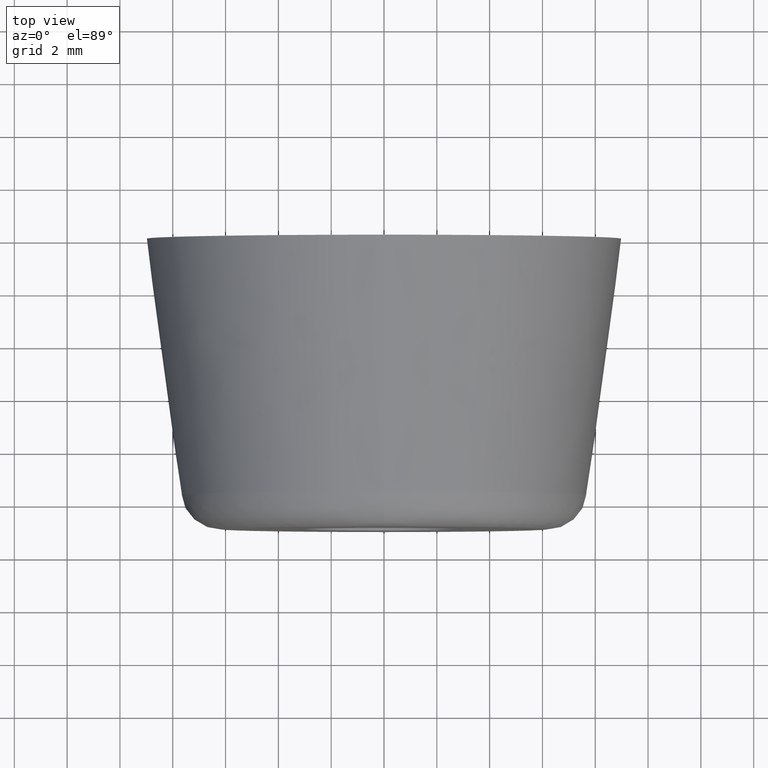
[diagram: clean part render]
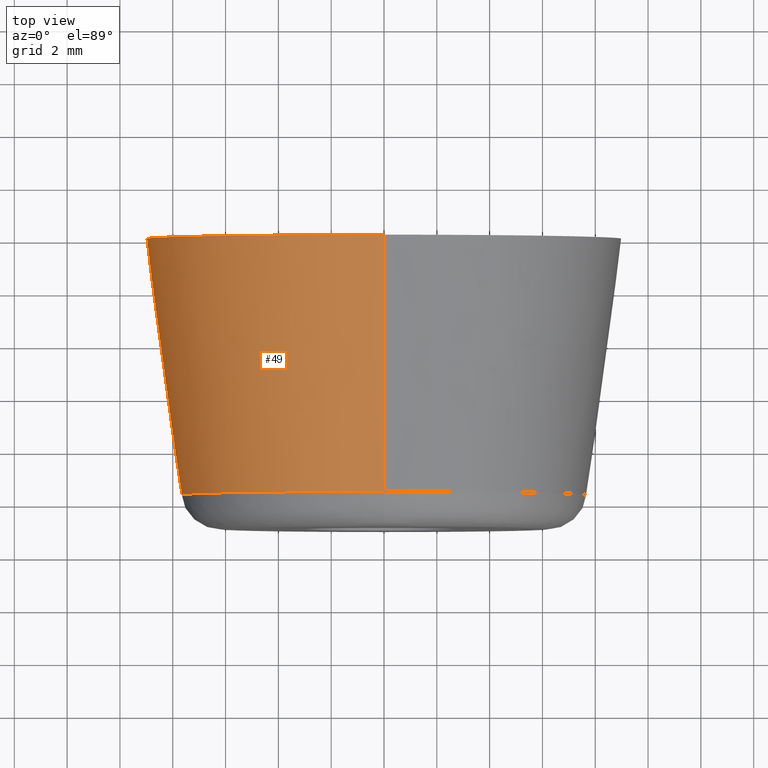
[diagram: same view with one face highlighted and labeled with its STEP entity id]
A machine part, top view. The second image highlights one B-rep face of the part: STEP entity #49.
In plain terms, the highlighted face is a freeform B-spline surface patch.
Its self-contained STEP definition (entity closure, byte-faithful):
#49=ADVANCED_FACE('',(#145),#144,.T.);
#144=( BOUNDED_SURFACE() B_SPLINE_SURFACE( 2,1,((#254,#255),(#256,#257),(#258,#259),(#260,#261),(#262,#263)), .UNSPECIFIED.,.F.,.F.,.F.) B_SPLINE_SURFACE_WITH_KNOTS((3,2,3),(2,2),(0.00000000000E+00,5.00000000000E-01,1.00000000000E+00),(0.00000000000E+00,1.00000000000E+00), .UNSPECIFIED. ) GEOMETRIC_REPRESENTATION_ITEM() RATIONAL_B_SPLINE_SURFACE(((1.00000000000E+00,1.00000000000E+00),(7.07106781187E-01,7.07106781187E-01),(1.00000000000E+00,1.00000000000E+00),(7.07106781187E-01,7.07106781187E-01),(1.00000000000E+00,1.00000000000E+00))) REPRESENTATION_ITEM('') SURFACE() );
#145=FACE_OUTER_BOUND('',#264,.T.);
#254=CARTESIAN_POINT('',(3.36468364638E-14,-9.70266980710E+00,-7.67690866267E+00));
#255=CARTESIAN_POINT('',(3.33227725495E-14,0.00000000000E+00,-9.00000000000E+00));
#256=CARTESIAN_POINT('',(-7.67690866267E+00,-9.70266980710E+00,-7.67690866267E+00));
#257=CARTESIAN_POINT('',(-9.00000000000E+00,0.00000000000E+00,-9.00000000000E+00));
#258=CARTESIAN_POINT('',(-7.67690866267E+00,-9.70266980710E+00,1.41022524316E-15));
#259=CARTESIAN_POINT('',(-9.00000000000E+00,0.00000000000E+00,1.65327317885E-15));
#260=CARTESIAN_POINT('',(-7.67690866267E+00,-9.70266980710E+00,7.67690866267E+00));
#261=CARTESIAN_POINT('',(-9.00000000000E+00,0.00000000000E+00,9.00000000000E+00));
#262=CARTESIAN_POINT('',(3.64672869501E-14,-9.70266980710E+00,7.67690866267E+00));
#263=CARTESIAN_POINT('',(3.66293189072E-14,0.00000000000E+00,9.00000000000E+00));
#264=EDGE_LOOP('',(#312,#313,#314,#315));
#312=ORIENTED_EDGE('',*,*,#328,.T.);
#313=ORIENTED_EDGE('',*,*,#340,.F.);
#314=ORIENTED_EDGE('',*,*,#337,.F.);
#315=ORIENTED_EDGE('',*,*,#341,.T.);
#328=EDGE_CURVE('',#398,#399,#400,.T.);
#337=EDGE_CURVE('',#450,#457,#458,.T.);
#340=EDGE_CURVE('',#457,#399,#476,.T.);
#341=EDGE_CURVE('',#450,#398,#482,.T.);
#398=VERTEX_POINT('',#528);
#399=VERTEX_POINT('',#529);
#400=CIRCLE('',#533,9.00000000000E+00);
#450=VERTEX_POINT('',#556);
#457=VERTEX_POINT('',#560);
#458=CIRCLE('',#564,7.67690866267E+00);
#476=(BOUNDED_CURVE() B_SPLINE_CURVE(1,(#574,#575),.UNSPECIFIED.,.F.,.F.) B_SPLINE_CURVE_WITH_KNOTS((2,2),(0.00000000000E+00,1.00000000000E+00),.UNSPECIFIED.) CURVE() GEOMETRIC_REPRESENTATION_ITEM() RATIONAL_B_SPLINE_CURVE((1.00000000000E+00,1.00000000000E+00)) REPRESENTATION_ITEM('') );
#482=(BOUNDED_CURVE() B_SPLINE_CURVE(1,(#576,#577),.UNSPECIFIED.,.F.,.F.) B_SPLINE_CURVE_WITH_KNOTS((2,2),(0.00000000000E+00,1.00000000000E+00),.UNSPECIFIED.) CURVE() GEOMETRIC_REPRESENTATION_ITEM() RATIONAL_B_SPLINE_CURVE((7.50000000000E-01,7.50000000000E-01)) REPRESENTATION_ITEM('') );
#528=CARTESIAN_POINT('',(3.61192557345E-14,0.00000000000E+00,9.00000000000E+00));
#529=CARTESIAN_POINT('',(3.55271367880E-14,0.00000000000E+00,-9.00000000000E+00));
#530=CARTESIAN_POINT('',(3.55271367880E-14,0.00000000000E+00,0.00000000000E+00));
#531=DIRECTION('',(0.00000000000E+00,-1.00000000000E+00,-0.00000000000E+00));
#532=DIRECTION('',(-1.22460635382E-16,0.00000000000E+00,-1.00000000000E+00));
#533=AXIS2_PLACEMENT_3D('',#530,#531,#532);
#556=CARTESIAN_POINT('',(3.64153152077E-14,-9.70266980710E+00,7.67690866267E+00));
#560=CARTESIAN_POINT('',(3.55271367880E-14,-9.70266980710E+00,-7.67690866267E+00));
#561=CARTESIAN_POINT('',(3.55271367880E-14,-9.70266980710E+00,0.00000000000E+00));
#562=DIRECTION('',(0.00000000000E+00,-1.00000000000E+00,-0.00000000000E+00));
#563=DIRECTION('',(-1.22460635382E-16,0.00000000000E+00,-1.00000000000E+00));
#564=AXIS2_PLACEMENT_3D('',#561,#562,#563);
#574=CARTESIAN_POINT('',(3.36468985628E-14,-9.70266980710E+00,-7.67690866267E+00));
#575=CARTESIAN_POINT('',(3.33228453511E-14,0.00000000000E+00,-9.00000000000E+00));
#576=CARTESIAN_POINT('',(3.73034936274E-14,-9.70266980710E+00,7.67690866267E+00));
#577=CARTESIAN_POINT('',(3.75995531006E-14,0.00000000000E+00,9.00000000000E+00));